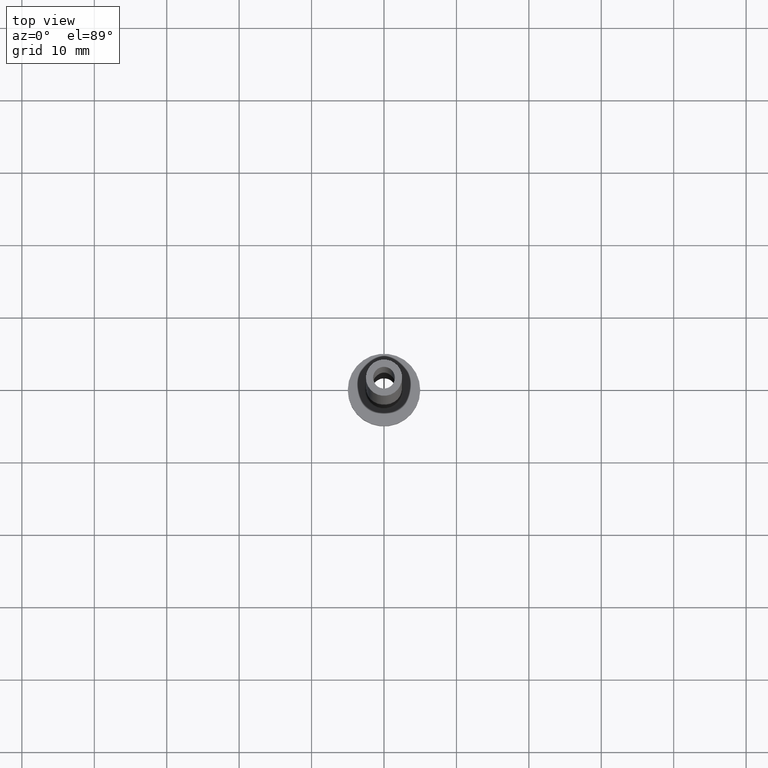
[diagram: clean part render]
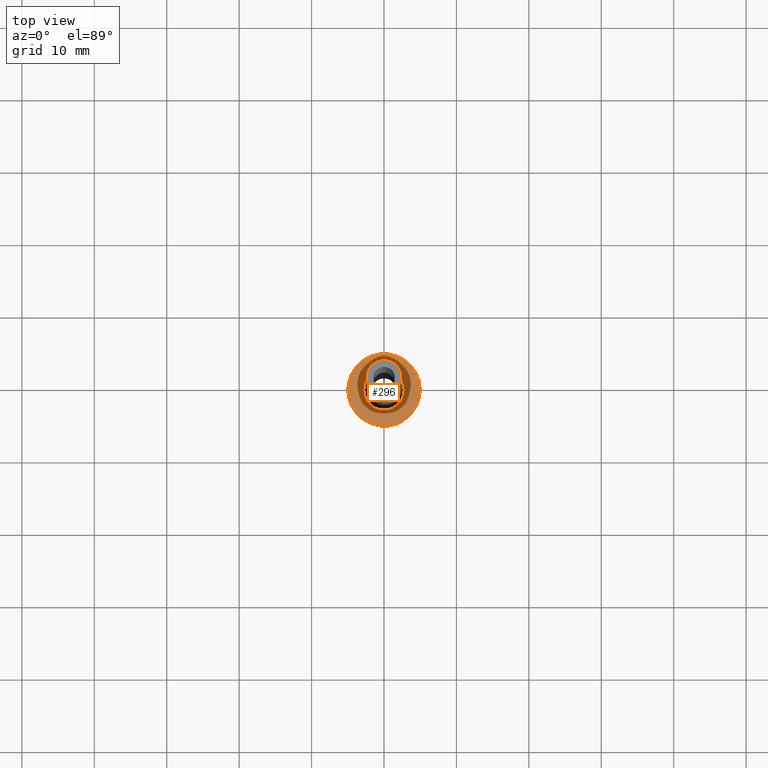
[diagram: same view with one face highlighted and labeled with its STEP entity id]
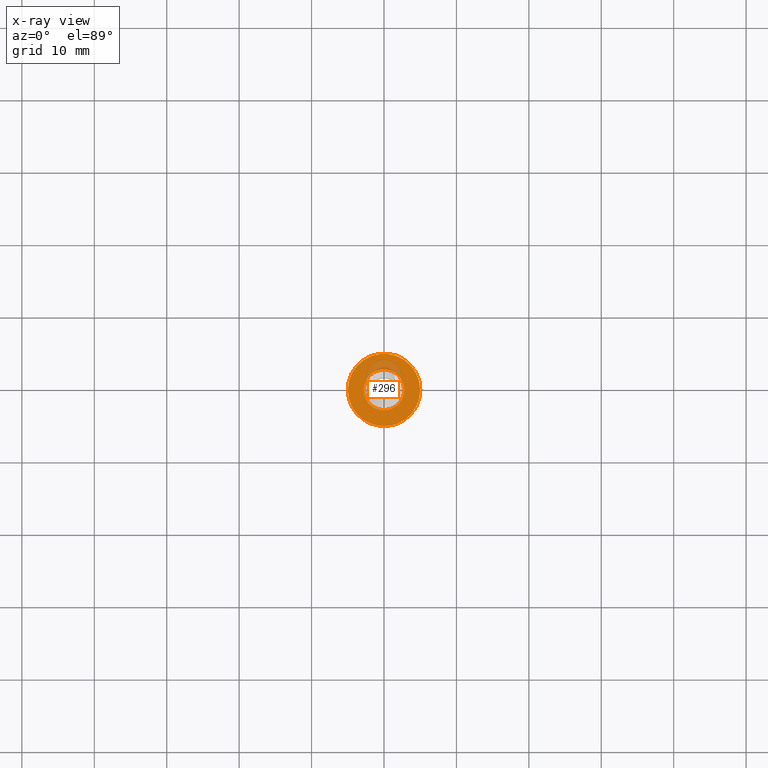
[diagram: x-ray of the same camera — body ghosted, the highlighted face saturated]
A machine part, top view. The second image highlights one B-rep face of the part: STEP entity #296.
The next image is the same camera in x-ray: the body ghosted, the highlighted face saturated — about 12% of this face is hidden behind the body in this view.
In plain terms, the highlighted planar face has unit normal (0, 0, 1).
Its self-contained STEP definition (entity closure, byte-faithful):
#14 = VERTEX_POINT ( 'NONE', #15 ) ;
#15 = CARTESIAN_POINT ( 'NONE',  ( 5.000000000000000000, 6.123233995736766282E-16, 3.000000000000000000 ) ) ;
#16 = ORIENTED_EDGE ( 'NONE', *, *, #327, .T. ) ;
#20 = EDGE_CURVE ( 'NONE', #156, #366, #137, .T. ) ;
#28 = CARTESIAN_POINT ( 'NONE',  ( 0.000000000000000000, 0.000000000000000000, 3.000000000000000000 ) ) ;
#42 = CARTESIAN_POINT ( 'NONE',  ( 0.000000000000000000, 0.000000000000000000, 3.000000000000000000 ) ) ;
#57 = PLANE ( 'NONE',  #210 ) ;
#59 = CARTESIAN_POINT ( 'NONE',  ( -5.000000000000000000, 0.000000000000000000, 3.000000000000000000 ) ) ;
#63 = DIRECTION ( 'NONE',  ( 1.000000000000000000, 0.000000000000000000, 0.000000000000000000 ) ) ;
#71 = CIRCLE ( 'NONE', #147, 2.799999999999999822 ) ;
#86 = AXIS2_PLACEMENT_3D ( 'NONE', #260, #321, #134 ) ;
#116 = DIRECTION ( 'NONE',  ( -0.000000000000000000, -0.000000000000000000, -1.000000000000000000 ) ) ;
#119 = DIRECTION ( 'NONE',  ( 1.000000000000000000, 0.000000000000000000, 0.000000000000000000 ) ) ;
#126 = CARTESIAN_POINT ( 'NONE',  ( 0.000000000000000000, 0.000000000000000000, 3.000000000000000000 ) ) ;
#127 = CIRCLE ( 'NONE', #86, 5.000000000000000000 ) ;
#134 = DIRECTION ( 'NONE',  ( 1.000000000000000000, 0.000000000000000000, 0.000000000000000000 ) ) ;
#137 = CIRCLE ( 'NONE', #443, 2.799999999999999822 ) ;
#142 = EDGE_CURVE ( 'NONE', #307, #14, #249, .T. ) ;
#147 = AXIS2_PLACEMENT_3D ( 'NONE', #28, #198, #63 ) ;
#156 = VERTEX_POINT ( 'NONE', #448 ) ;
#189 = DIRECTION ( 'NONE',  ( 0.000000000000000000, 0.000000000000000000, 1.000000000000000000 ) ) ;
#198 = DIRECTION ( 'NONE',  ( -0.000000000000000000, -0.000000000000000000, -1.000000000000000000 ) ) ;
#210 = AXIS2_PLACEMENT_3D ( 'NONE', #126, #280, #416 ) ;
#230 = ORIENTED_EDGE ( 'NONE', *, *, #20, .T. ) ;
#237 = EDGE_CURVE ( 'NONE', #366, #156, #71, .T. ) ;
#241 = AXIS2_PLACEMENT_3D ( 'NONE', #42, #189, #365 ) ;
#249 = CIRCLE ( 'NONE', #241, 5.000000000000000000 ) ;
#260 = CARTESIAN_POINT ( 'NONE',  ( 0.000000000000000000, 0.000000000000000000, 3.000000000000000000 ) ) ;
#280 = DIRECTION ( 'NONE',  ( 0.000000000000000000, 0.000000000000000000, 1.000000000000000000 ) ) ;
#296 = ADVANCED_FACE ( 'NONE', ( #450, #409 ), #57, .T. ) ;
#297 = EDGE_LOOP ( 'NONE', ( #230, #432 ) ) ;
#300 = EDGE_LOOP ( 'NONE', ( #337, #16 ) ) ;
#307 = VERTEX_POINT ( 'NONE', #59 ) ;
#321 = DIRECTION ( 'NONE',  ( 0.000000000000000000, 0.000000000000000000, 1.000000000000000000 ) ) ;
#327 = EDGE_CURVE ( 'NONE', #14, #307, #127, .T. ) ;
#337 = ORIENTED_EDGE ( 'NONE', *, *, #142, .T. ) ;
#365 = DIRECTION ( 'NONE',  ( 1.000000000000000000, 0.000000000000000000, 0.000000000000000000 ) ) ;
#366 = VERTEX_POINT ( 'NONE', #386 ) ;
#386 = CARTESIAN_POINT ( 'NONE',  ( -2.799999999999999822, 3.429011037612589276E-16, 2.999999999999998668 ) ) ;
#409 = FACE_OUTER_BOUND ( 'NONE', #300, .T. ) ;
#416 = DIRECTION ( 'NONE',  ( 1.000000000000000000, 0.000000000000000000, -0.000000000000000000 ) ) ;
#432 = ORIENTED_EDGE ( 'NONE', *, *, #237, .T. ) ;
#440 = CARTESIAN_POINT ( 'NONE',  ( 0.000000000000000000, 0.000000000000000000, 3.000000000000000000 ) ) ;
#443 = AXIS2_PLACEMENT_3D ( 'NONE', #440, #116, #119 ) ;
#448 = CARTESIAN_POINT ( 'NONE',  ( 2.799999999999999822, 0.000000000000000000, 2.999999999999998668 ) ) ;
#450 = FACE_BOUND ( 'NONE', #297, .T. ) ;